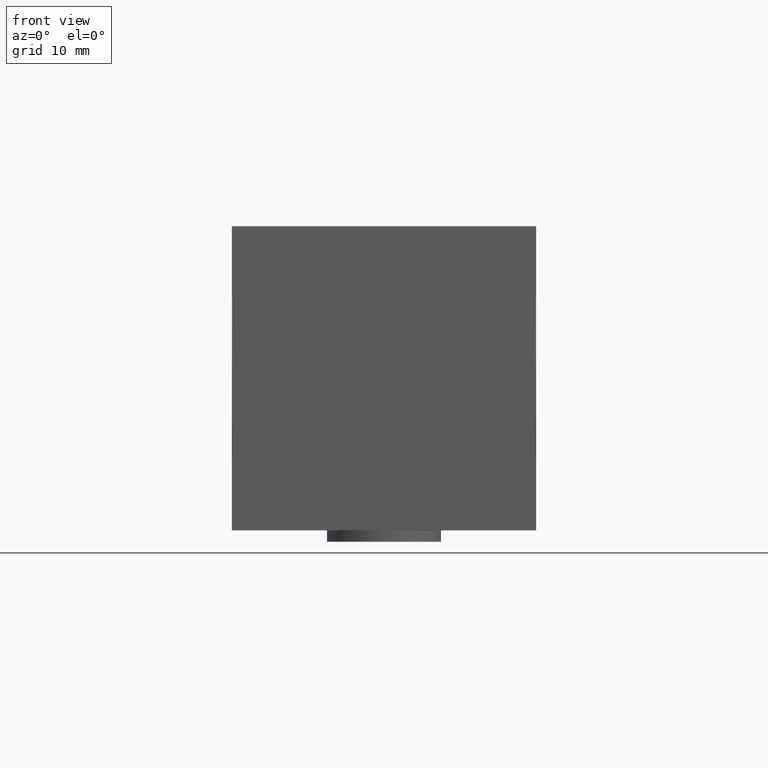
[diagram: clean part render]
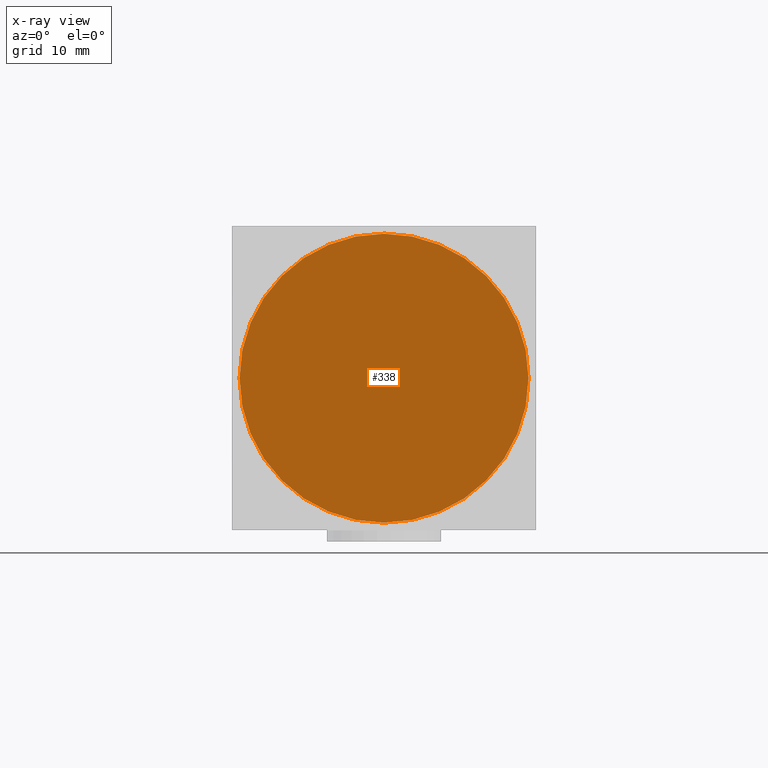
[diagram: x-ray — body ghosted, one internal face saturated and labeled with its STEP entity id]
A machine part, front view, then the same camera in x-ray: the body is ghosted and one INTERNAL B-rep face — a face not visible from any outside direction — is saturated and labeled: STEP entity #338.
In plain terms, the highlighted planar face has unit normal (0, 1, 0).
Its self-contained STEP definition (entity closure, byte-faithful):
#338 = ADVANCED_FACE( '', ( #716 ), #717, .F. );
#716 = FACE_OUTER_BOUND( '', #1161, .T. );
#717 = PLANE( '', #1162 );
#1161 = EDGE_LOOP( '', ( #1891 ) );
#1162 = AXIS2_PLACEMENT_3D( '', #1892, #1893, #1894 );
#1891 = ORIENTED_EDGE( '', *, *, #2673, .F. );
#1892 = CARTESIAN_POINT( '', ( 0.000000000000000, 0.000000000000000, 0.000000000000000 ) );
#1893 = DIRECTION( '', ( 1.00000000000000, 0.000000000000000, -0.000000000000000 ) );
#1894 = DIRECTION( '', ( -0.000000000000000, 0.000000000000000, -1.00000000000000 ) );
#2673 = EDGE_CURVE( '', #3210, #3210, #3211, .T. );
#3210 = VERTEX_POINT( '', #3923 );
#3211 = CIRCLE( '', #3924, 19.0000000000000 );
#3923 = CARTESIAN_POINT( '', ( 0.000000000000000, 0.000000000000000, -19.0000000000000 ) );
#3924 = AXIS2_PLACEMENT_3D( '', #4422, #4423, #4424 );
#4422 = CARTESIAN_POINT( '', ( 0.000000000000000, 0.000000000000000, 0.000000000000000 ) );
#4423 = DIRECTION( '', ( 1.00000000000000, 0.000000000000000, -0.000000000000000 ) );
#4424 = DIRECTION( '', ( -0.000000000000000, 0.000000000000000, -1.00000000000000 ) );